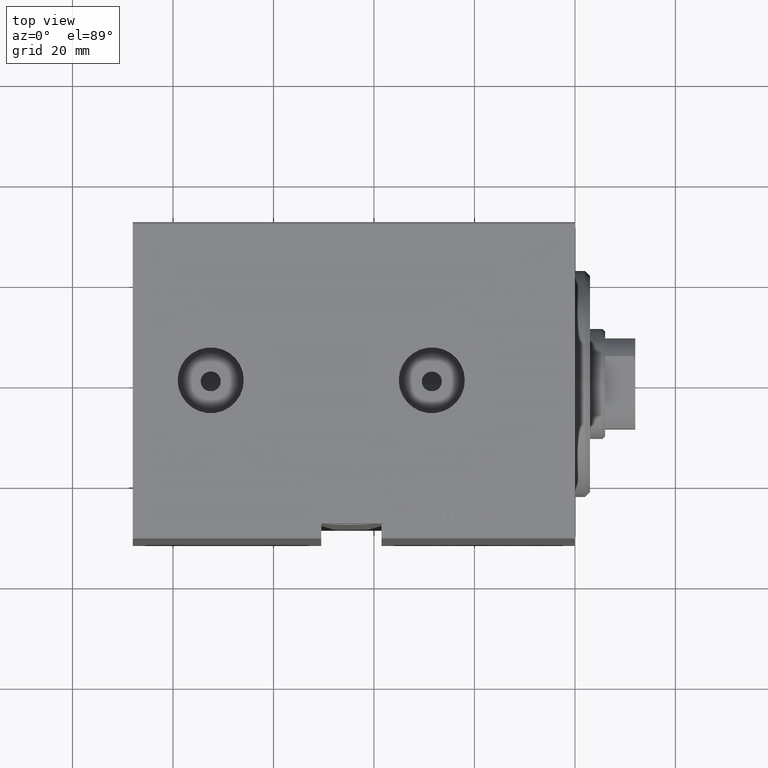
[diagram: clean part render]
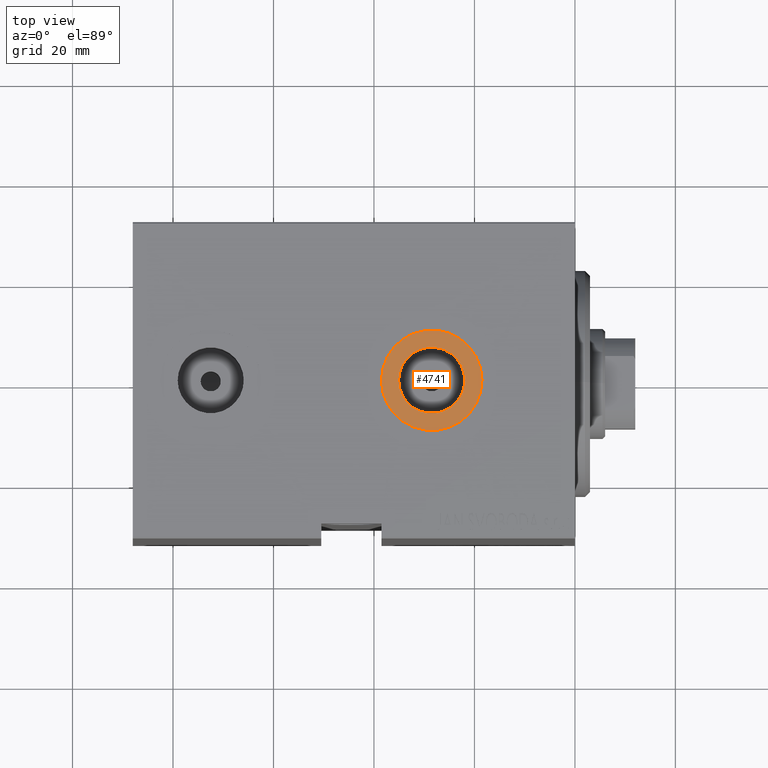
[diagram: same view with one face highlighted and labeled with its STEP entity id]
A machine part, top view. The second image highlights one B-rep face of the part: STEP entity #4741.
In plain terms, the highlighted planar face has unit normal (0, 0, 1).
Its self-contained STEP definition (entity closure, byte-faithful):
#274 = DIRECTION ( 'NONE',  ( 0.000000000000000000, 0.000000000000000000, 1.000000000000000000 ) ) ;
#1866 = AXIS2_PLACEMENT_3D ( 'NONE', #37311, #19984, #29959 ) ;
#2345 = VERTEX_POINT ( 'NONE', #41809 ) ;
#2564 = CIRCLE ( 'NONE', #27577, 6.579999999999999183 ) ;
#2752 = ORIENTED_EDGE ( 'NONE', *, *, #36113, .F. ) ;
#4134 = PLANE ( 'NONE',  #1866 ) ;
#4741 = ADVANCED_FACE ( 'NONE', ( #20643, #10009 ), #4134, .T. ) ;
#4781 = CIRCLE ( 'NONE', #19334, 6.579999999999999183 ) ;
#6165 = CIRCLE ( 'NONE', #41500, 10.00000000000000533 ) ;
#7038 = CARTESIAN_POINT ( 'NONE',  ( 35.07999999999999829, -9.361999711620863359E-15, 42.39999999999999147 ) ) ;
#8750 = CARTESIAN_POINT ( 'NONE',  ( 28.50000000000000000, -9.361999711620863359E-15, 42.39999999999999147 ) ) ;
#9984 = VERTEX_POINT ( 'NONE', #7038 ) ;
#10009 = FACE_OUTER_BOUND ( 'NONE', #31287, .T. ) ;
#13104 = CARTESIAN_POINT ( 'NONE',  ( 28.50000000000000000, -9.361999711620863359E-15, 42.39999999999999147 ) ) ;
#14542 = VERTEX_POINT ( 'NONE', #34199 ) ;
#15230 = CARTESIAN_POINT ( 'NONE',  ( 28.50000000000000000, -9.361999711620863359E-15, 42.39999999999999147 ) ) ;
#15639 = EDGE_LOOP ( 'NONE', ( #18226, #2752 ) ) ;
#15688 = ORIENTED_EDGE ( 'NONE', *, *, #36305, .T. ) ;
#17489 = CARTESIAN_POINT ( 'NONE',  ( 21.92000000000000171, -8.556182117781905894E-15, 42.39999999999999147 ) ) ;
#18226 = ORIENTED_EDGE ( 'NONE', *, *, #25876, .F. ) ;
#18529 = DIRECTION ( 'NONE',  ( 0.000000000000000000, 0.000000000000000000, 1.000000000000000000 ) ) ;
#18670 = AXIS2_PLACEMENT_3D ( 'NONE', #13104, #274, #20927 ) ;
#19334 = AXIS2_PLACEMENT_3D ( 'NONE', #30343, #41328, #33368 ) ;
#19984 = DIRECTION ( 'NONE',  ( 0.000000000000000000, 0.000000000000000000, 1.000000000000000000 ) ) ;
#20643 = FACE_BOUND ( 'NONE', #15639, .T. ) ;
#20927 = DIRECTION ( 'NONE',  ( 1.000000000000000000, 0.000000000000000000, 0.000000000000000000 ) ) ;
#23867 = ORIENTED_EDGE ( 'NONE', *, *, #32343, .T. ) ;
#24908 = CIRCLE ( 'NONE', #18670, 10.00000000000000533 ) ;
#25228 = DIRECTION ( 'NONE',  ( 0.000000000000000000, 0.000000000000000000, 1.000000000000000000 ) ) ;
#25876 = EDGE_CURVE ( 'NONE', #9984, #38413, #2564, .T. ) ;
#27577 = AXIS2_PLACEMENT_3D ( 'NONE', #8750, #18529, #28718 ) ;
#28718 = DIRECTION ( 'NONE',  ( 1.000000000000000000, 0.000000000000000000, 0.000000000000000000 ) ) ;
#29959 = DIRECTION ( 'NONE',  ( 1.000000000000000000, 0.000000000000000000, -0.000000000000000000 ) ) ;
#30343 = CARTESIAN_POINT ( 'NONE',  ( 28.50000000000000000, -9.361999711620863359E-15, 42.39999999999999147 ) ) ;
#31287 = EDGE_LOOP ( 'NONE', ( #15688, #23867 ) ) ;
#32343 = EDGE_CURVE ( 'NONE', #14542, #2345, #6165, .T. ) ;
#33368 = DIRECTION ( 'NONE',  ( 1.000000000000000000, 0.000000000000000000, 0.000000000000000000 ) ) ;
#34199 = CARTESIAN_POINT ( 'NONE',  ( 18.49999999999999645, -8.137352912473508722E-15, 42.39999999999999147 ) ) ;
#36113 = EDGE_CURVE ( 'NONE', #38413, #9984, #4781, .T. ) ;
#36305 = EDGE_CURVE ( 'NONE', #2345, #14542, #24908, .T. ) ;
#37311 = CARTESIAN_POINT ( 'NONE',  ( 28.50000000000000000, -9.361999711620863359E-15, 42.39999999999999147 ) ) ;
#38413 = VERTEX_POINT ( 'NONE', #17489 ) ;
#41328 = DIRECTION ( 'NONE',  ( 0.000000000000000000, 0.000000000000000000, 1.000000000000000000 ) ) ;
#41500 = AXIS2_PLACEMENT_3D ( 'NONE', #15230, #25228, #42118 ) ;
#41809 = CARTESIAN_POINT ( 'NONE',  ( 38.50000000000000711, -9.361999711620863359E-15, 42.39999999999999147 ) ) ;
#42118 = DIRECTION ( 'NONE',  ( 1.000000000000000000, 0.000000000000000000, 0.000000000000000000 ) ) ;